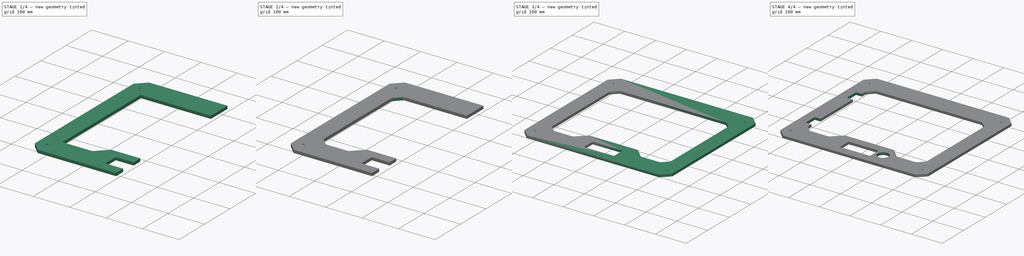
[diagram: build sequence overview — one tinted view per stage of 4, left to right]
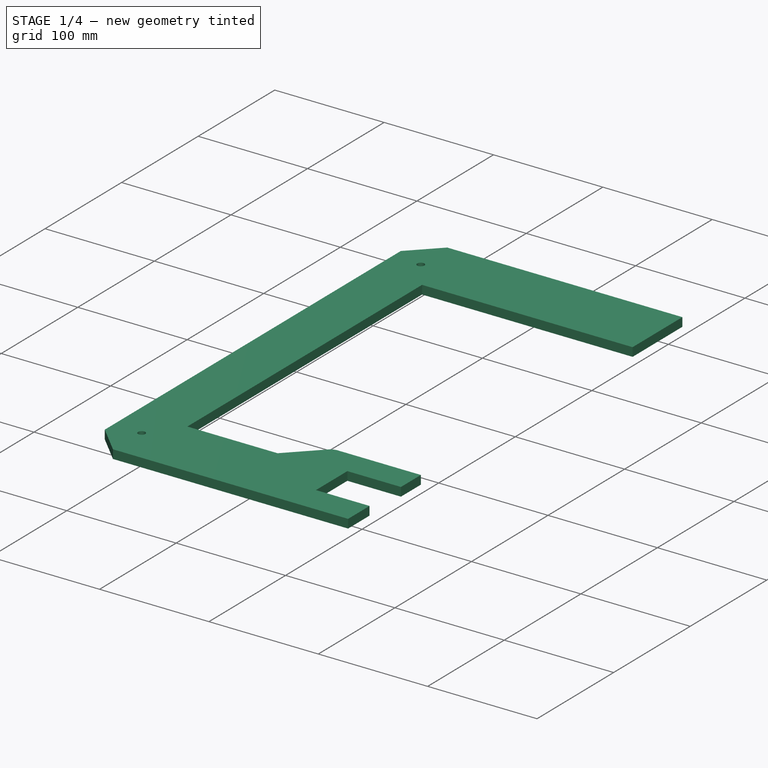
[diagram: stage 1 of 4 — iso view after this stage's code; geometry added in this stage tinted green]
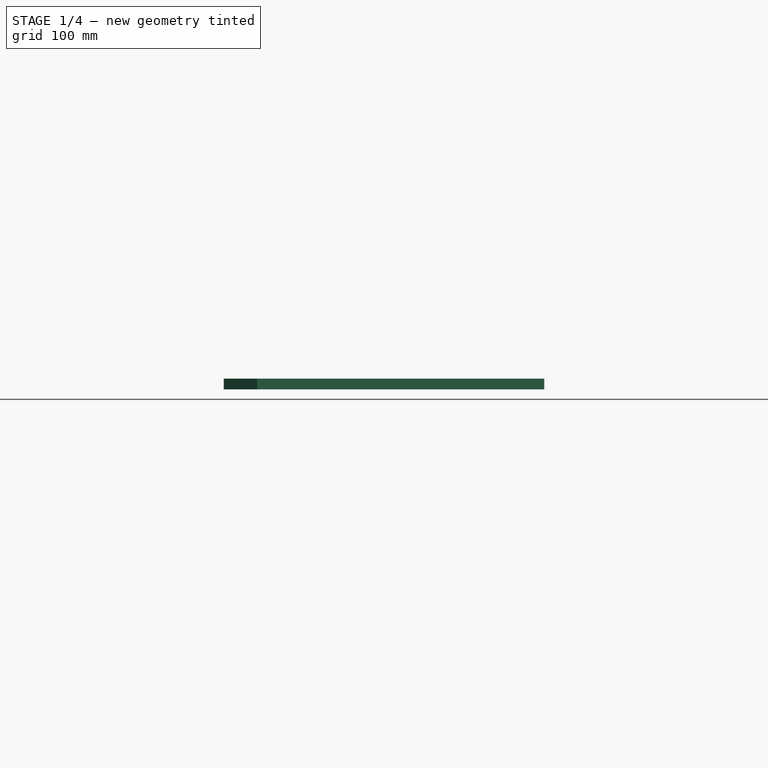
[diagram: stage 1 of 4 — front view after this stage's code; geometry added in this stage tinted green]
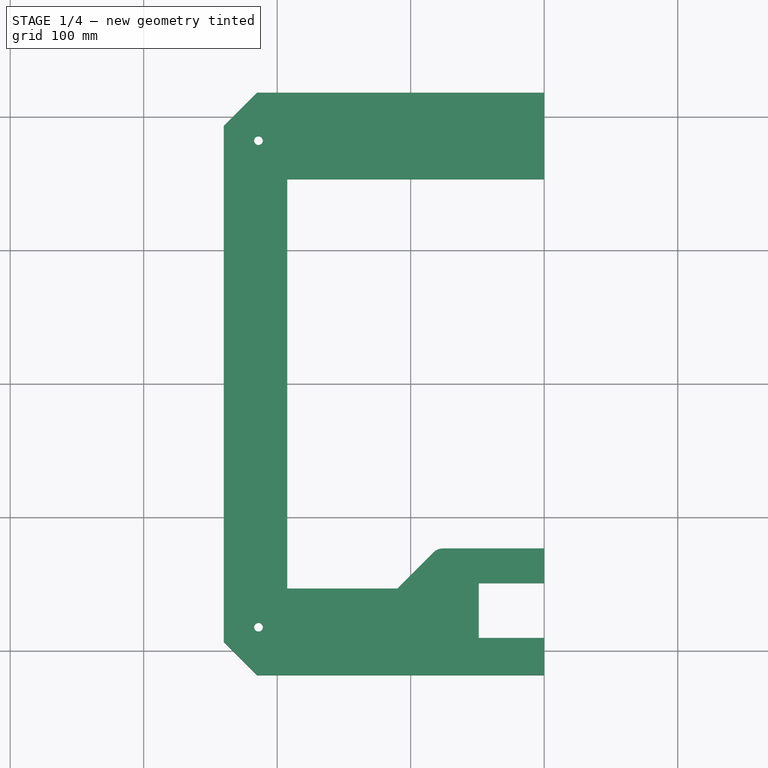
[diagram: stage 1 of 4 — top view after this stage's code; geometry added in this stage tinted green]
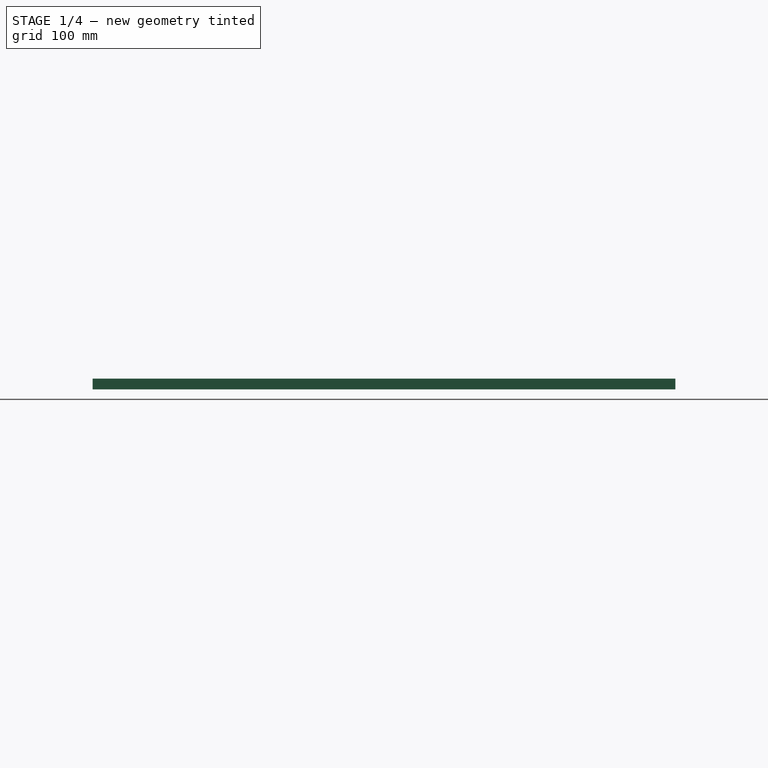
[diagram: stage 1 of 4 — right view after this stage's code; geometry added in this stage tinted green]
FCSTD DOCUMENT  (FreeCAD 0.14R3310 (Git))
Label: MARCO PRINCIPAL (MARCO EXTERIOR)
License: CC-BY 3.0
LicenseURL: http://creativecommons.org/licenses/by/3.0/
objects: PartDesign::Fillet×4, Sketcher::SketchObject×3, PartDesign::Chamfer×2, PartDesign::Pad×1, Part::Mirroring×1, Part::MultiFuse×1, PartDesign::Pocket×1
note: 15 computed .brp shape members not serialized (recipe doc carries the construction recipe); baked Part::Feature solids carry a one-line shape summary decoded from their .brp

FEATURE [Sketcher::SketchObject] Sketch
  sketch-geometry (18):
    g0: LineSegment StartX=-240 StartY=218.25 StartZ=0 EndX=0 EndY=218.25 EndZ=0
    g1: LineSegment [constr] StartX=0 StartY=218.25 StartZ=0 EndX=0 EndY=-218.25 EndZ=0
    g2: LineSegment StartX=0 StartY=-218.25 StartZ=0 EndX=-240 EndY=-218.25 EndZ=0
    g3: LineSegment StartX=-240 StartY=-218.25 StartZ=0 EndX=-240 EndY=218.25 EndZ=0
    g4: LineSegment StartX=0 StartY=-123.25 StartZ=0 EndX=-75.86 EndY=-123.25 EndZ=0
    g5: LineSegment StartX=-82.9311 StartY=-126.179 StartZ=0 EndX=-110.002 EndY=-153.25 EndZ=0
    g6: LineSegment StartX=-110.002 StartY=-153.25 StartZ=0 EndX=-192.5 EndY=-153.25 EndZ=0
    g7: LineSegment StartX=-192.5 StartY=-153.25 StartZ=0 EndX=-192.5 EndY=153.25 EndZ=0
    g8: LineSegment StartX=-192.5 StartY=153.25 StartZ=0 EndX=0 EndY=153.25 EndZ=0
    g9: LineSegment StartX=0 StartY=-149.25 StartZ=0 EndX=-49 EndY=-149.25 EndZ=0
    g10: LineSegment StartX=0 StartY=-190.25 StartZ=0 EndX=-49 EndY=-190.25 EndZ=0
    g11: LineSegment StartX=-49 StartY=-149.25 StartZ=0 EndX=-49 EndY=-190.25 EndZ=0
    g12: ArcOfCircle CenterX=-75.86 CenterY=-133.25 CenterZ=0 NormalX=0 NormalY=0 NormalZ=1 Radius=10 StartAngle=1.5708 EndAngle=2.35619
    g13: LineSegment StartX=0 StartY=153.25 StartZ=0 EndX=0 EndY=218.25 EndZ=0
    g14: LineSegment StartX=0 StartY=-123.25 StartZ=0 EndX=0 EndY=-149.25 EndZ=0
    g15: LineSegment StartX=0 StartY=-190.25 StartZ=0 EndX=0 EndY=-218.25 EndZ=0
    g16: Circle CenterX=-214 CenterY=-182.25 CenterZ=0 NormalX=0 NormalY=0 NormalZ=1 Radius=3.25
    g17: Circle CenterX=-214 CenterY=182.25 CenterZ=0 NormalX=0 NormalY=0 NormalZ=1 Radius=3.25
  constraints (53):
    c: Coincident(g0,g1)
    c: Coincident(g1,g2)
    c: Coincident(g2,g3)
    c: Coincident(g3,g0)
    c: Horizontal(g0)
    c: Horizontal(g2)
    c: Vertical(g1)
    c: Vertical(g3)
    c: PointOnObject(g1,g-2)
    c: DistanceX(g0) = 240
    c: DistanceY(g3) = 436.5
    c: Symmetric(g0,g1,g-1)
    c: Horizontal(g4)
    c: PointOnObject(g4,g1)
    c: DistanceY(g-1,g4) = -123.25
    c: Distance(g4) = 75.86
    c: Angle(g5,g4) = 2.35619
    c: Horizontal(g6)
    c: Distance(g6,g4) = 30
    c: Coincident(g7,g6)
    c: Vertical(g7)
    c: Distance(g6,g1) = 192.5
    c: Coincident(g8,g7)
    c: PointOnObject(g8,g1)
    c: Horizontal(g8)
    c: Distance(g8,g0) = 65
    c: PointOnObject(g9,g1)
    c: Horizontal(g9)
    c: PointOnObject(g10,g1)
    c: Horizontal(g10)
    c: Coincident(g11,g10)
    c: Vertical(g11)
    c: Distance(g9) = 49
    c: Coincident(g9,g11)
    c: Distance(g11) = 41
    c: Distance(g10,g2) = 28
    c: Coincident(g12,g4)
    c: Tangent(g12,g4)
    c: Radius(g12) = 10
    c: Coincident(g5,g12)
    c: Tangent(g5,g12)
    c: Coincident(g5,g6)
    c: Coincident(g13,g8)
    c: Coincident(g13,g0)
    c: Coincident(g14,g4)
    c: Coincident(g14,g9)
    c: Coincident(g15,g10)
    c: Coincident(g15,g1)
    c: Radius(g16) = 3.25
    c: Distance(g16,g3) = 26
    c: Distance(g16,g2) = 36
    c: Symmetric(g17,g16,g-1)
    c: Equal(g17,g16)
FEATURE [PartDesign::Pad] Pad
  Length = 8
  Length2 = 100
  Sketch = -> Sketch
  Type = 0
FEATURE [PartDesign::Chamfer] Chamfer
  Base = -> Pad [Edge8,Edge5]
  Size = 25
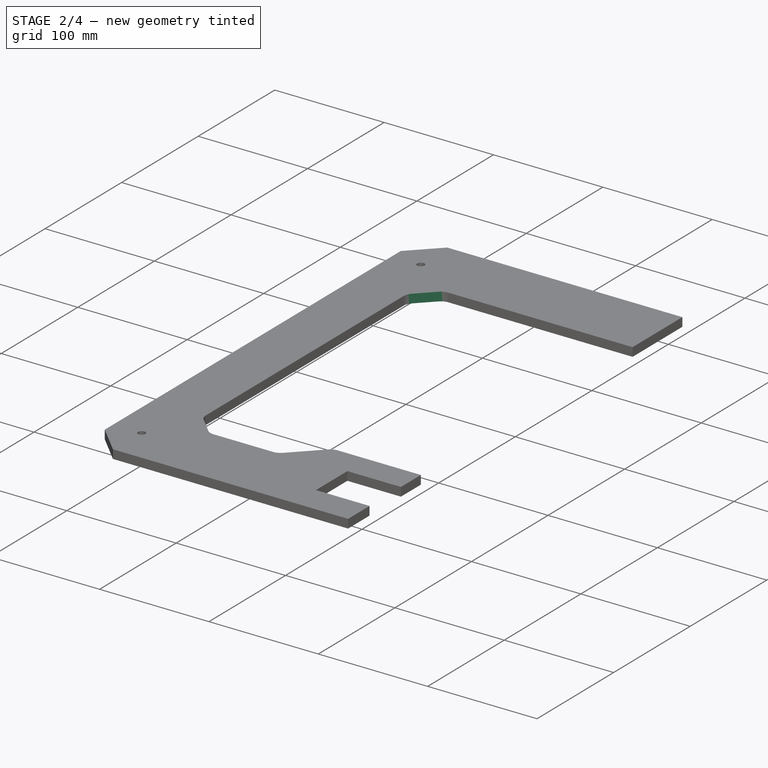
[diagram: stage 2 of 4 — iso view after this stage's code; geometry added in this stage tinted green]
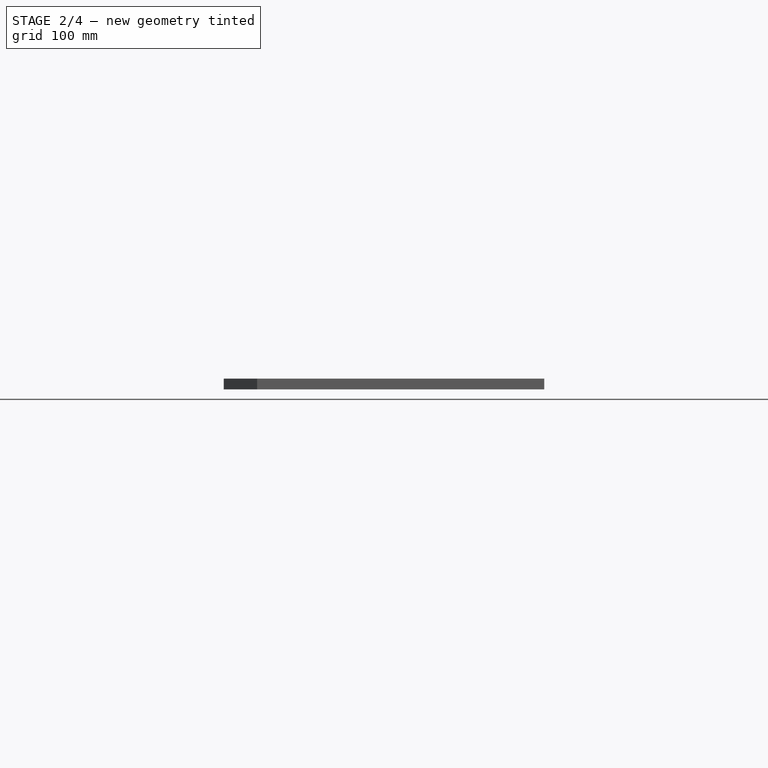
[diagram: stage 2 of 4 — front view after this stage's code; geometry added in this stage tinted green]
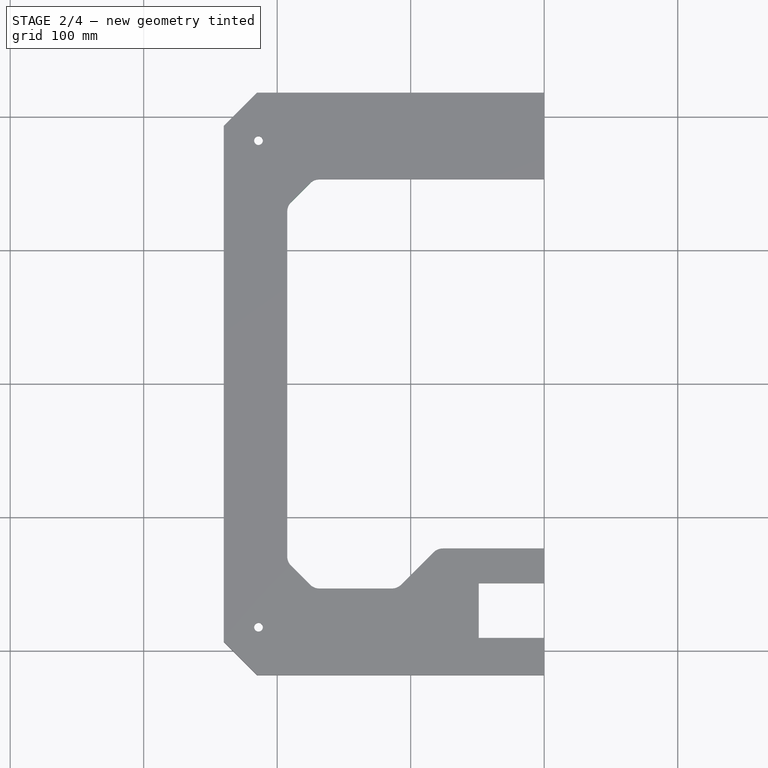
[diagram: stage 2 of 4 — top view after this stage's code; geometry added in this stage tinted green]
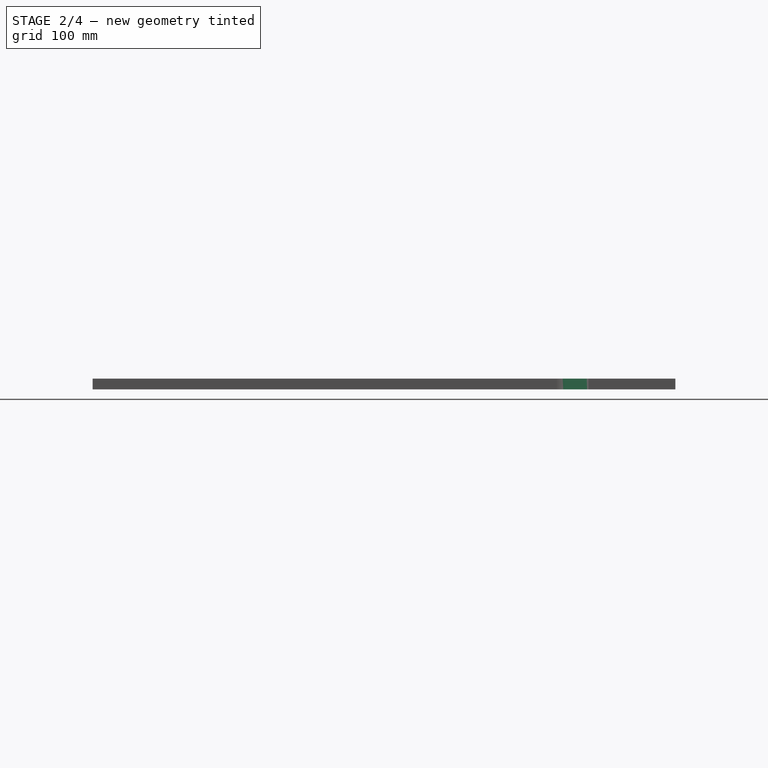
[diagram: stage 2 of 4 — right view after this stage's code; geometry added in this stage tinted green]
FEATURE [PartDesign::Chamfer] Chamfer001
  Base = -> Chamfer [Edge53,Edge51]
  Size = 20
FEATURE [PartDesign::Fillet] Fillet
  Base = -> Chamfer001 [Edge29,Edge33,Edge22,Edge25]
  Radius = 10
FEATURE [PartDesign::Fillet] Fillet001
  Base = -> Fillet [Edge57]
  Radius = 10
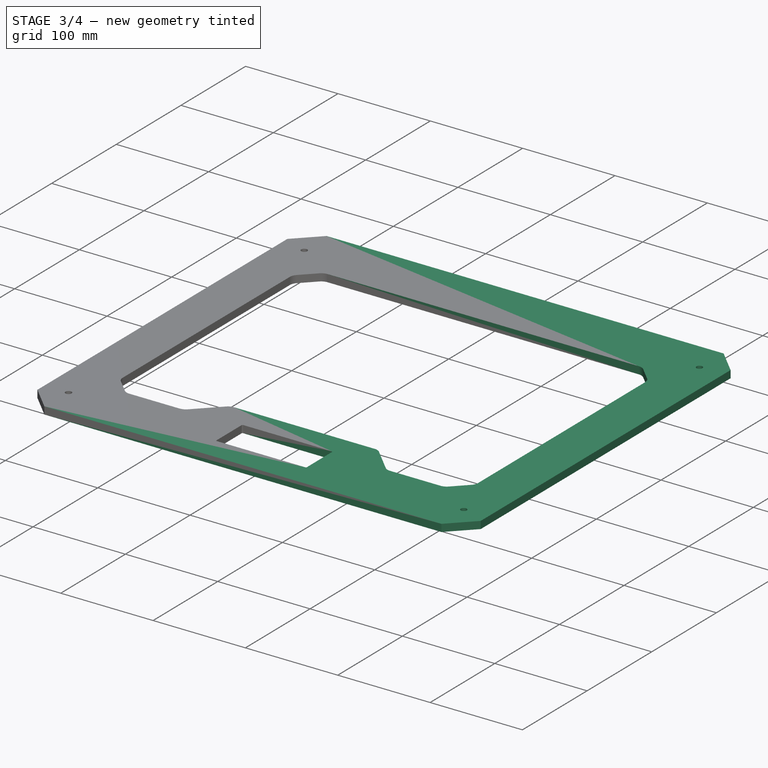
[diagram: stage 3 of 4 — iso view after this stage's code; geometry added in this stage tinted green]
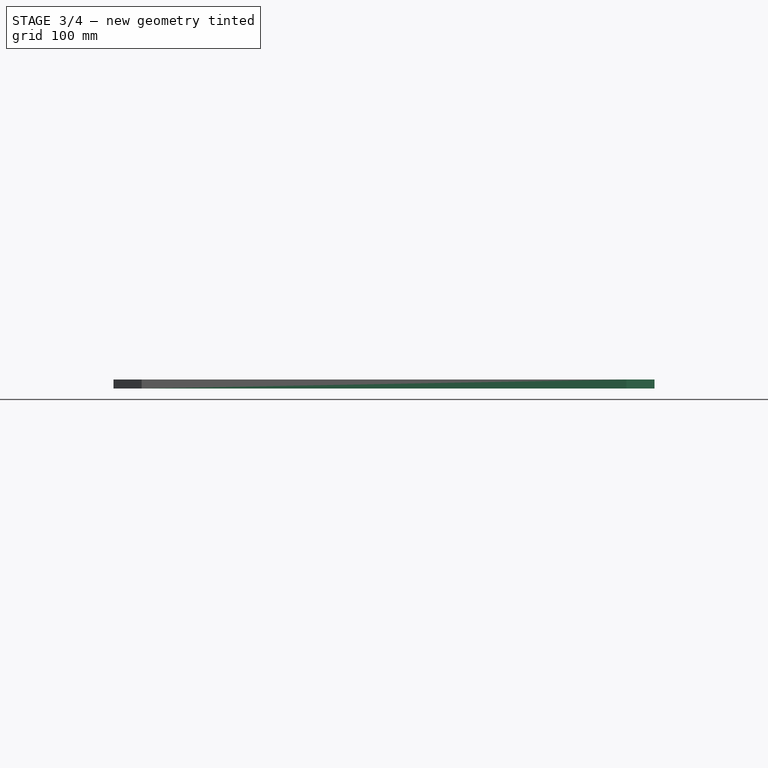
[diagram: stage 3 of 4 — front view after this stage's code; geometry added in this stage tinted green]
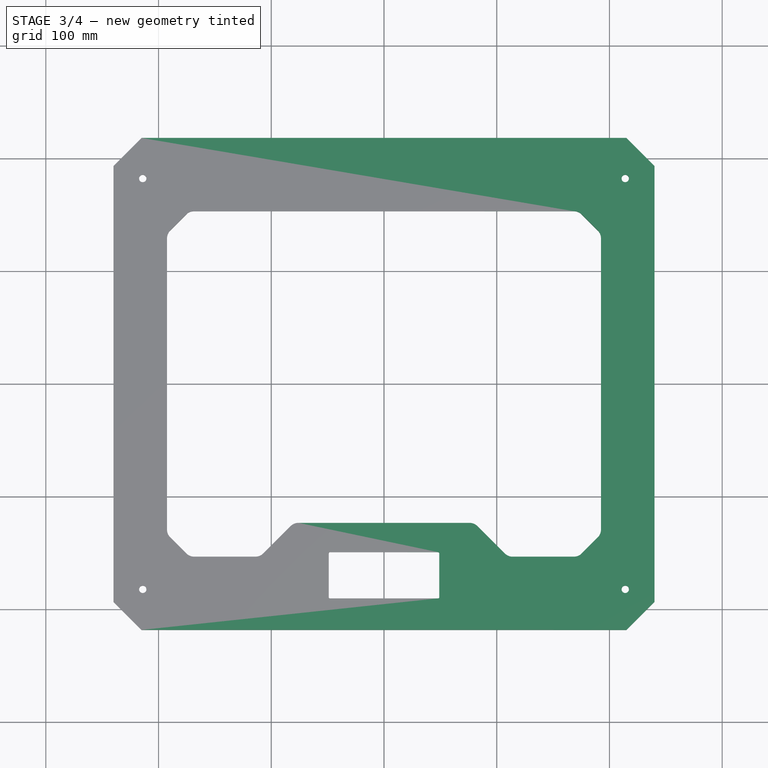
[diagram: stage 3 of 4 — top view after this stage's code; geometry added in this stage tinted green]
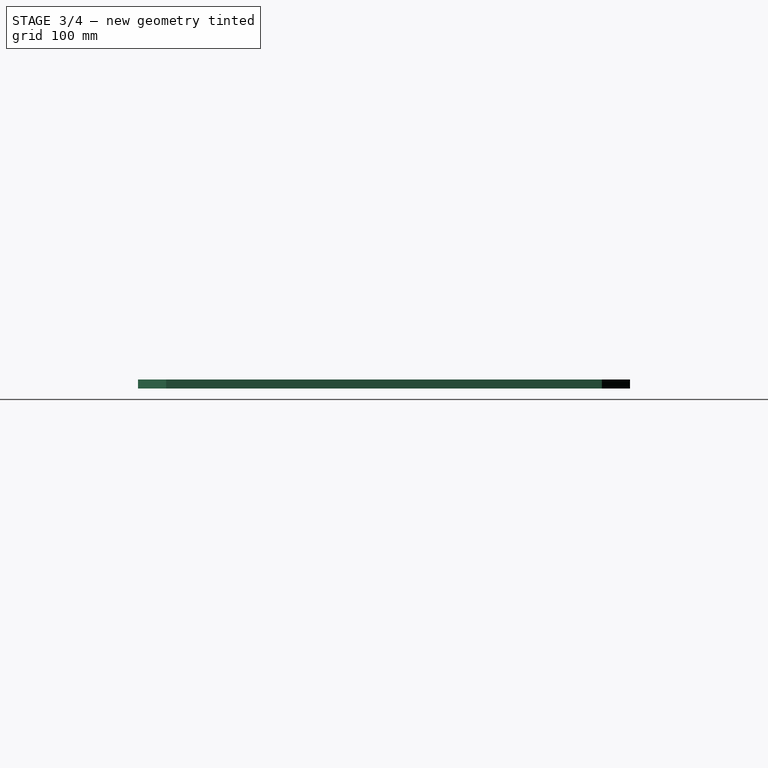
[diagram: stage 3 of 4 — right view after this stage's code; geometry added in this stage tinted green]
FEATURE [PartDesign::Fillet] Fillet002
  Base = -> Fillet001 [Edge50,Edge54]
  Radius = 1
FEATURE [Part::Mirroring] Part__Mirroring  label="Fillet002 (Mirror #1)"
  Base = (0,0,0)
  Normal = (1,0,0)
  Source = -> Fillet002
FEATURE [Part::MultiFuse] Fusion
  Shapes = -> [Part__Mirroring,Fillet002]
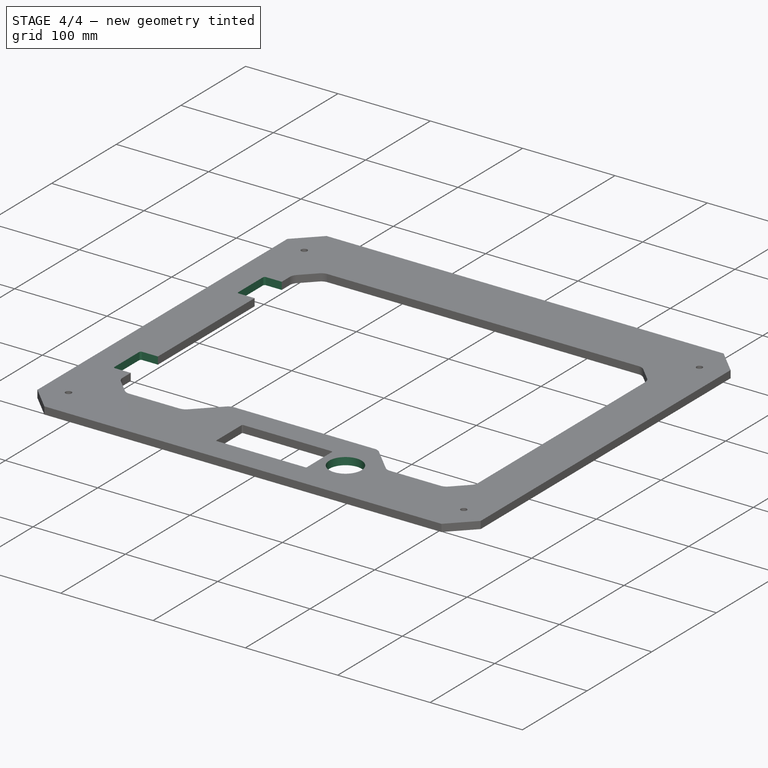
[diagram: stage 4 of 4 — iso view after this stage's code; geometry added in this stage tinted green]
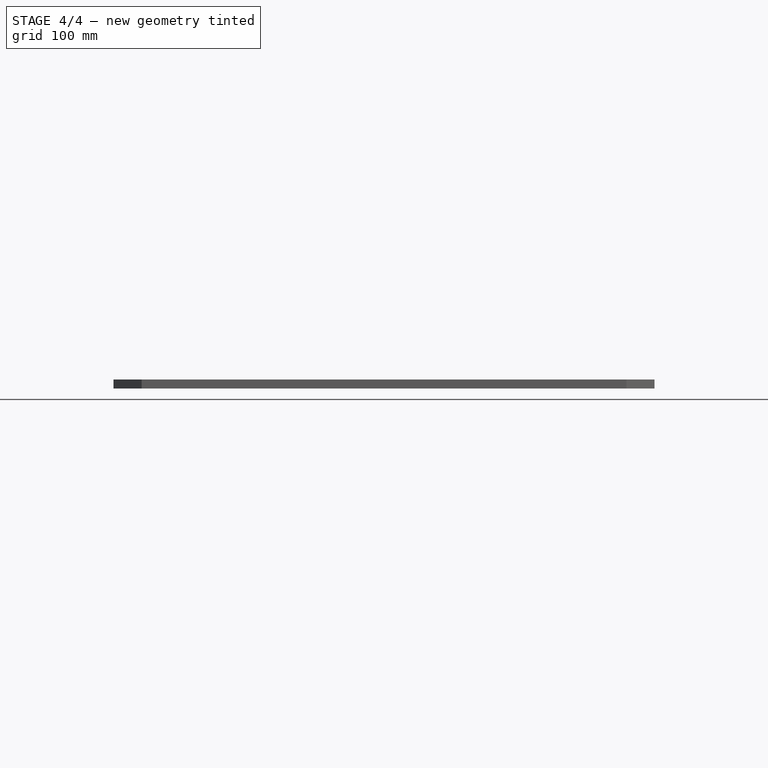
[diagram: stage 4 of 4 — front view after this stage's code; geometry added in this stage tinted green]
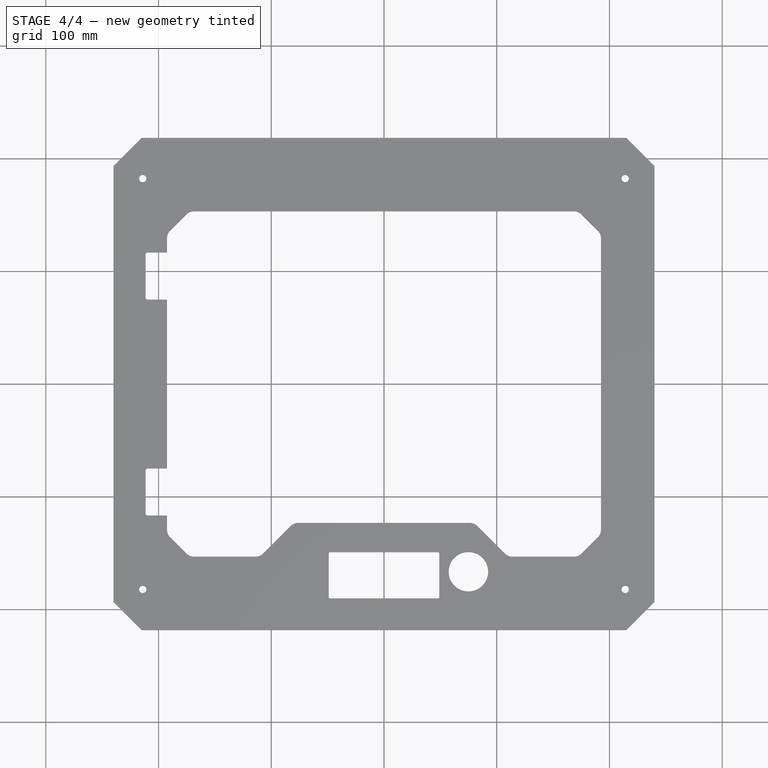
[diagram: stage 4 of 4 — top view after this stage's code; geometry added in this stage tinted green]
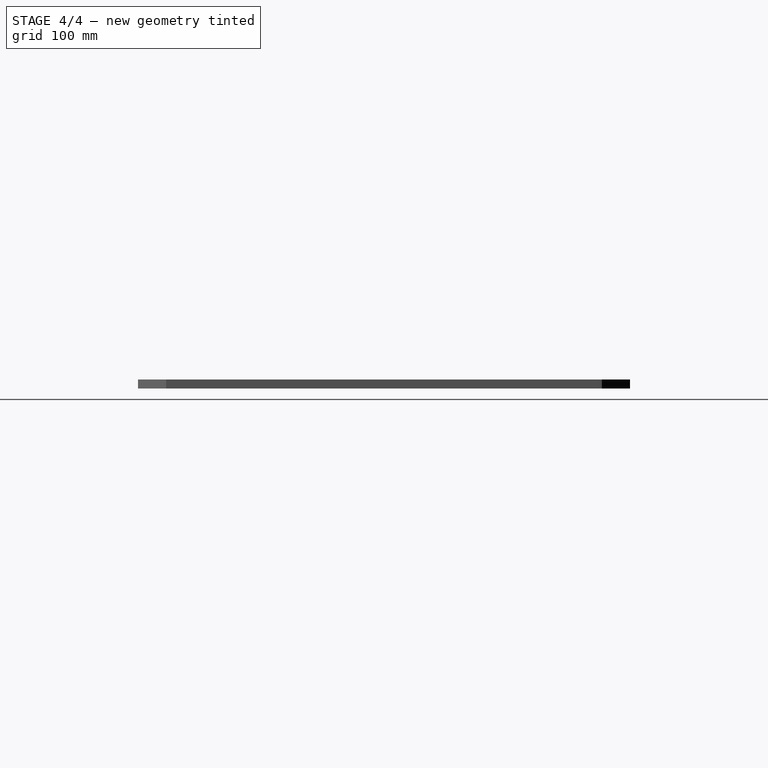
[diagram: stage 4 of 4 — right view after this stage's code; geometry added in this stage tinted green]
FEATURE [Sketcher::SketchObject] Sketch001
  Placement = pos=(0,0,8) rot=(0,0,1;0rad)
  Support = -> Fusion [Face41]
FEATURE [Sketcher::SketchObject] Sketch002
  ExternalGeometry = -> [Fusion]
  Placement = pos=(0,0,8) rot=(0,0,1;0rad)
  Support = -> Fusion [Face41]
  sketch-geometry (9):
    g0: LineSegment StartX=-211.5 StartY=116.75 StartZ=0 EndX=-192.5 EndY=116.75 EndZ=0
    g1: LineSegment StartX=-192.5 StartY=116.75 StartZ=0 EndX=-192.5 EndY=74.75 EndZ=0
    g2: LineSegment StartX=-192.5 StartY=74.75 StartZ=0 EndX=-211.5 EndY=74.75 EndZ=0
    g3: LineSegment StartX=-211.5 StartY=74.75 StartZ=0 EndX=-211.5 EndY=116.75 EndZ=0
    g4: LineSegment StartX=-211.5 StartY=-116.75 StartZ=0 EndX=-192.5 EndY=-116.75 EndZ=0
    g5: LineSegment StartX=-192.5 StartY=-116.75 StartZ=0 EndX=-192.5 EndY=-74.75 EndZ=0
    g6: LineSegment StartX=-192.5 StartY=-74.75 StartZ=0 EndX=-211.5 EndY=-74.75 EndZ=0
    g7: LineSegment StartX=-211.5 StartY=-74.75 StartZ=0 EndX=-211.5 EndY=-116.75 EndZ=0
    g8: Circle CenterX=74.9 CenterY=-166.55 CenterZ=0 NormalX=0 NormalY=0 NormalZ=1 Radius=17.5
  constraints (25):
    c: Coincident(g0,g1)
    c: Coincident(g1,g2)
    c: Coincident(g2,g3)
    c: Coincident(g3,g0)
    c: Horizontal(g0)
    c: Horizontal(g2)
    c: Vertical(g1)
    c: Vertical(g3)
    c: PointOnObject(g0,g-3)
    c: DistanceY(g-1,g1) = 74.75
    c: Distance(g3) = 42
    c: Distance(g0) = 19
    c: Coincident(g4,g5)
    c: Coincident(g5,g6)
    c: Coincident(g6,g7)
    c: Coincident(g7,g4)
    c: Horizontal(g4)
    c: Horizontal(g6)
    c: Vertical(g5)
    c: Vertical(g7)
    c: Symmetric(g5,g1,g-1)
    c: Symmetric(g4,g0,g-1)
    c: Distance(g8,g-5) = 51.7
    c: Distance(g8,g-4) = 25.9
    c: Radius(g8) = 17.5
FEATURE [PartDesign::Pocket] Pocket
  Length = 5
  Sketch = -> Sketch002
  Type = 1
FEATURE [PartDesign::Fillet] Fillet003
  Base = -> Pocket [Edge126,Edge125,Edge130,Edge129]
  Radius = 2
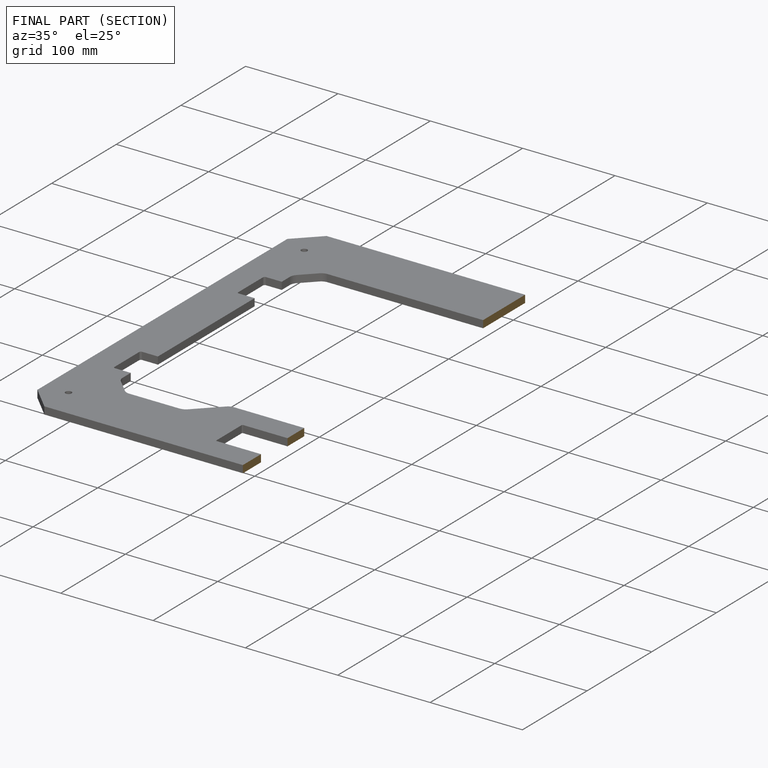
[diagram: finished part — half-section view (interior)]
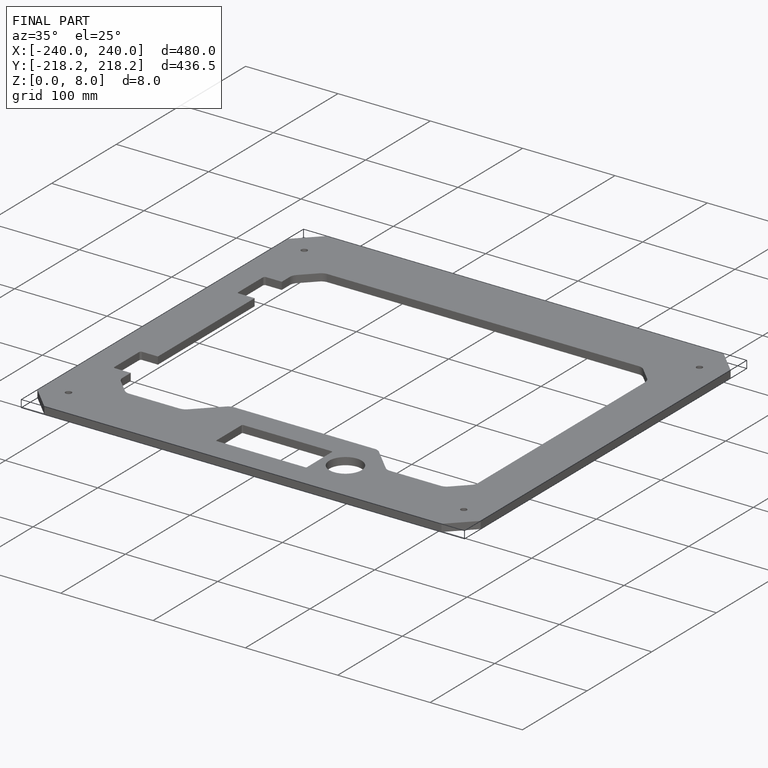
[diagram: finished part — iso view with bounding-box wireframe]
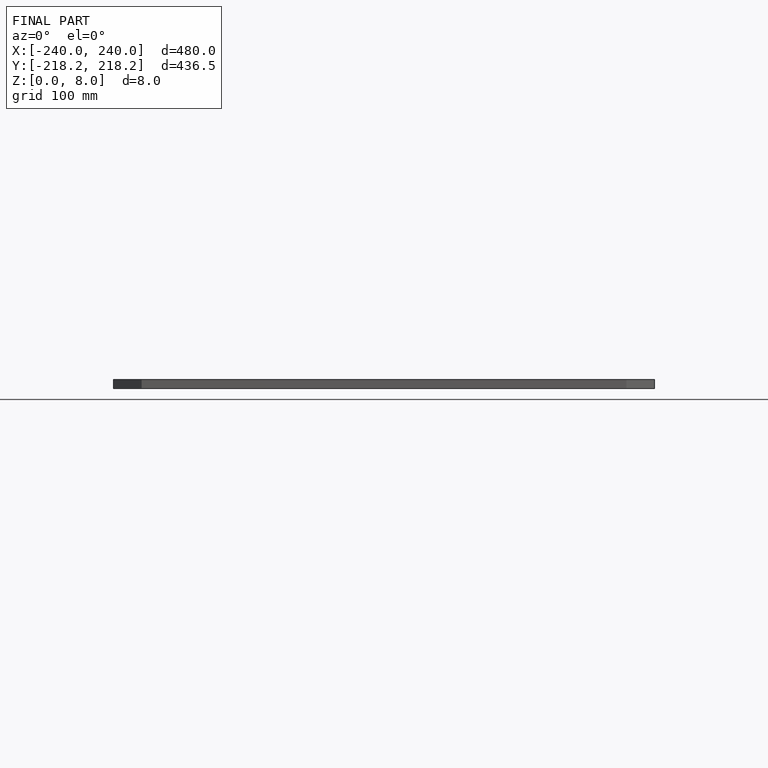
[diagram: finished part — front view with bounding-box wireframe]
